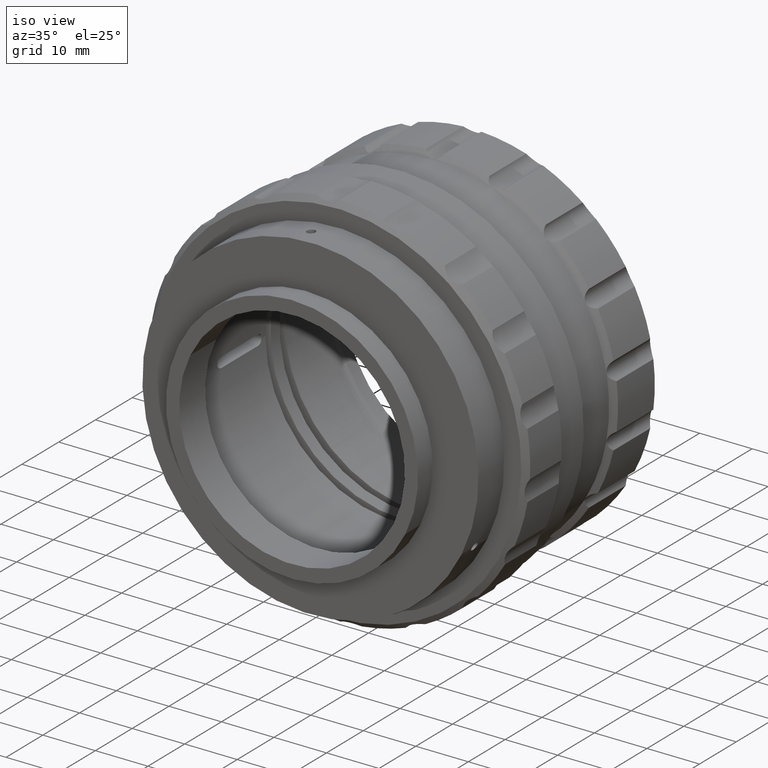
[diagram: clean part render]
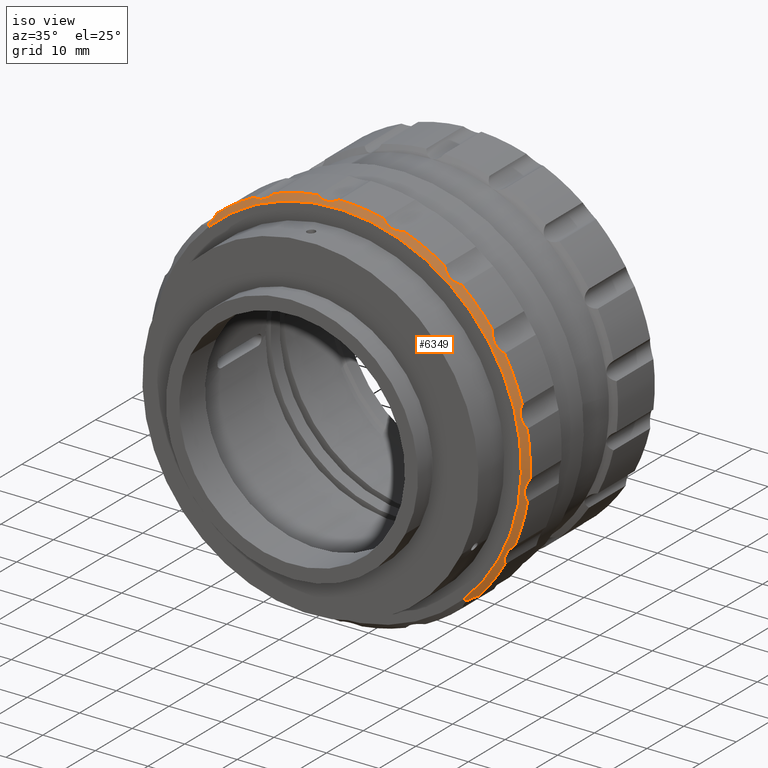
[diagram: same view with one face highlighted and labeled with its STEP entity id]
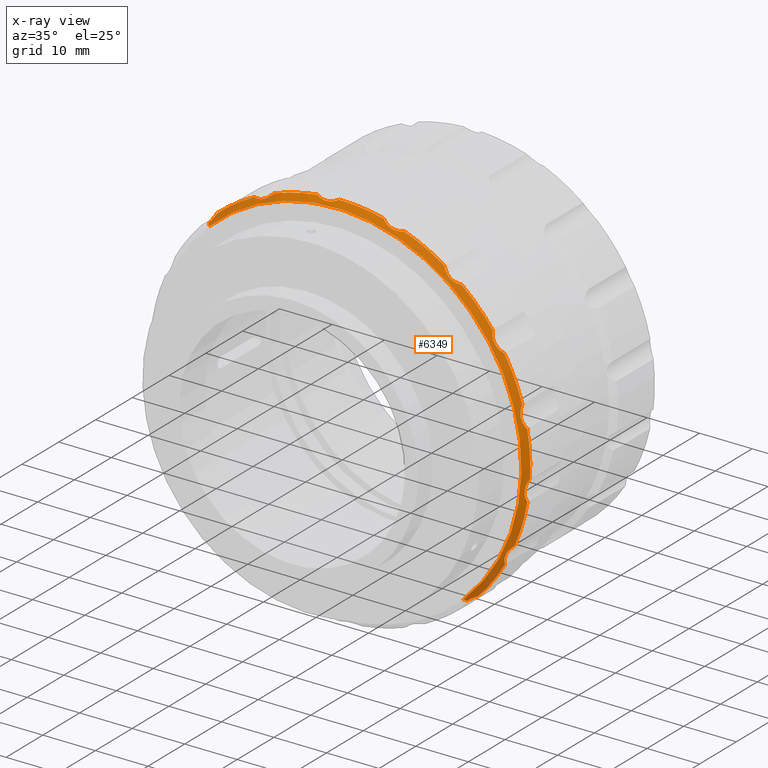
[diagram: x-ray of the same camera — body ghosted, the highlighted face saturated]
A machine part, iso view. The second image highlights one B-rep face of the part: STEP entity #6349.
The next image is the same camera in x-ray: the body ghosted, the highlighted face saturated — about 0% of this face is hidden behind the body in this view.
In plain terms, the highlighted conical surface has half-angle 45 deg.
Its self-contained STEP definition (entity closure, byte-faithful):
#31 = CARTESIAN_POINT ( 'NONE',  ( 1.924931696468226816, -22.12597522935089245, 80.84931709369671182 ) ) ;
#59 = AXIS2_PLACEMENT_3D ( 'NONE', #5724, #7388, #8987 ) ;
#83 = CARTESIAN_POINT ( 'NONE',  ( 5.870992352621482446, -22.04875568700542487, 81.15316655217093000 ) ) ;
#101 = ORIENTED_EDGE ( 'NONE', *, *, #1528, .T. ) ;
#134 = CARTESIAN_POINT ( 'NONE',  ( 2.592953144925168374, -22.37300402163701918, 80.67023619500793075 ) ) ;
#189 = EDGE_CURVE ( 'NONE', #5180, #6953, #3983, .T. ) ;
#202 = CARTESIAN_POINT ( 'NONE',  ( -6.603957015242775341, -22.10558987426886191, 78.84163259731209905 ) ) ;
#242 = CARTESIAN_POINT ( 'NONE',  ( 35.91739132470262064, -22.54857976888866133, 64.43184879938198151 ) ) ;
#265 = CIRCLE ( 'NONE', #7614, 36.25000000000000711 ) ;
#289 = CARTESIAN_POINT ( 'NONE',  ( 35.20290547297081218, -22.31936865482181886, 65.88136629029348512 ) ) ;
#298 = VERTEX_POINT ( 'NONE', #5541 ) ;
#319 = CARTESIAN_POINT ( 'NONE',  ( 18.27524817734909490, -22.04875568700542132, 79.00147688315576033 ) ) ;
#343 = CARTESIAN_POINT ( 'NONE',  ( 35.38456866820897773, -22.45942525178016780, 65.38184131922146491 ) ) ;
#360 = FACE_OUTER_BOUND ( 'NONE', #7399, .T. ) ;
#397 = ORIENTED_EDGE ( 'NONE', *, *, #9250, .F. ) ;
#401 = CARTESIAN_POINT ( 'NONE',  ( 30.53899048135792782, -22.54875568700595068, 18.93196092296004451 ) ) ;
#418 = CARTESIAN_POINT ( 'NONE',  ( 14.59678653120992031, -22.19589872075868087, 79.96111868030246228 ) ) ;
#504 = CARTESIAN_POINT ( 'NONE',  ( 26.99663305742282660, -22.53743217542645638, 73.83178354251528219 ) ) ;
#525 = AXIS2_PLACEMENT_3D ( 'NONE', #5852, #9007, #3399 ) ;
#623 = ORIENTED_EDGE ( 'NONE', *, *, #4580, .T. ) ;
#676 = CARTESIAN_POINT ( 'NONE',  ( 5.971701014312827738, -22.04875568700542132, 44.90330644533106863 ) ) ;
#686 = CARTESIAN_POINT ( 'NONE',  ( -18.33813755582300686, -22.53736744146983639, 71.13193104234834152 ) ) ;
#697 = CARTESIAN_POINT ( 'NONE',  ( -9.042121922773258547, -22.47647707030724717, 77.42893686249644247 ) ) ;
#727 = VERTEX_POINT ( 'NONE', #9689 ) ;
#744 = CARTESIAN_POINT ( 'NONE',  ( 40.61496717566637926, -22.31936865482183308, 54.61857374151529854 ) ) ;
#800 = ORIENTED_EDGE ( 'NONE', *, *, #8002, .T. ) ;
#831 = VERTEX_POINT ( 'NONE', #9794 ) ;
#847 = CARTESIAN_POINT ( 'NONE',  ( -17.40640722589645861, -22.04875568700542132, 72.60757606409306675 ) ) ;
#859 = CARTESIAN_POINT ( 'NONE',  ( -10.14066871754699406, -22.11886439949005378, 77.29766075828584349 ) ) ;
#884 = CARTESIAN_POINT ( 'NONE',  ( 3.668268646777906650, -22.54892761526755507, 80.57931607295681431 ) ) ;
#913 = ORIENTED_EDGE ( 'NONE', *, *, #9517, .T. ) ;
#934 = CARTESIAN_POINT ( 'NONE',  ( 4.744329775688706619, -22.45848575386843393, 80.72297056496238099 ) ) ;
#945 = DIRECTION ( 'NONE',  ( 0.6871969081691013947, 0.000000000000000000, -0.7264712034229763304 ) ) ;
#976 = CARTESIAN_POINT ( 'NONE',  ( 38.41306627433549181, -22.45942525178017135, 29.67028329585249935 ) ) ;
#1033 = CARTESIAN_POINT ( 'NONE',  ( 38.99917592472822747, -22.19589872075868797, 30.32153015030515775 ) ) ;
#1085 = CARTESIAN_POINT ( 'NONE',  ( 38.11163067731299492, -22.53743217542644928, 29.22116769332701125 ) ) ;
#1123 = CARTESIAN_POINT ( 'NONE',  ( 14.33681415579647478, -22.04875568700542132, 80.17492934717920150 ) ) ;
#1127 = B_SPLINE_CURVE_WITH_KNOTS ( 'NONE', 3,
 ( #8926, #10529, #8767, #1390, #3098, #1443, #7218, #1498, #7965, #7165, #3898, #4753, #744, #10423, #8872, #7858 ),
 .UNSPECIFIED., .F., .F.,
 ( 4, 2, 2, 2, 2, 2, 2, 4 ),
 ( 4.716633616438002482E-07, 0.001092205581411866524, 0.001638072540436992649, 0.002183939499462118992, 0.002729806458487245551, 0.003275673417512371243, 0.003821540376537497802, 0.004367407335562623061 ),
 .UNSPECIFIED. ) ;
#1150 = CARTESIAN_POINT ( 'NONE',  ( 35.25739685821262270, -22.37300402163701563, 65.71285280804171691 ) ) ;
#1158 = CARTESIAN_POINT ( 'NONE',  ( 32.02071542237458601, -22.19563124079600769, 19.90509944612694326 ) ) ;
#1161 = CARTESIAN_POINT ( 'NONE',  ( 42.07432510816483529, -22.12597522935087468, 42.64663700071146479 ) ) ;
#1176 = CARTESIAN_POINT ( 'NONE',  ( 15.33991635530341746, -22.45942525178017490, 79.49700118196744825 ) ) ;
#1201 = CARTESIAN_POINT ( 'NONE',  ( 36.76230032785321811, -22.32758617608958218, 63.50393400404438893 ) ) ;
#1227 = CARTESIAN_POINT ( 'NONE',  ( 14.46324146225145491, -22.12597522935087468, 80.06558402038706390 ) ) ;
#1257 = CARTESIAN_POINT ( 'NONE',  ( 31.70819682208358969, -22.31892789301096514, 19.75958552638040899 ) ) ;
#1305 = CARTESIAN_POINT ( 'NONE',  ( 27.58341695139070993, -22.53706554084979530, 73.39653715876045226 ) ) ;
#1367 = CARTESIAN_POINT ( 'NONE',  ( 41.78196414355279842, -22.37300402163700852, 42.01986137080488248 ) ) ;
#1390 = CARTESIAN_POINT ( 'NONE',  ( 41.03405317071106850, -22.45848575386845525, 52.33205055596768318 ) ) ;
#1414 = VERTEX_POINT ( 'NONE', #2334 ) ;
#1429 = DIRECTION ( 'NONE',  ( 0.000000000000000000, -1.000000000000000000, -0.000000000000000000 ) ) ;
#1443 = CARTESIAN_POINT ( 'NONE',  ( 40.84233157670956160, -22.53706554084978819, 52.83864427144183651 ) ) ;
#1447 = CARTESIAN_POINT ( 'NONE',  ( -9.675455244936811638, -22.29778710484628945, 77.32640556182604996 ) ) ;
#1498 = CARTESIAN_POINT ( 'NONE',  ( 40.70572505913541050, -22.54892761526757283, 53.36681855768372174 ) ) ;
#1504 = CARTESIAN_POINT ( 'NONE',  ( -7.810455679396900663, -22.53641137941016837, 77.90483394436964204 ) ) ;
#1528 = EDGE_CURVE ( 'NONE', #6650, #1974, #8671, .T. ) ;
#1558 = CARTESIAN_POINT ( 'NONE',  ( 5.971701014312827738, -22.04875568700542132, 44.90330644533106863 ) ) ;
#1594 = ORIENTED_EDGE ( 'NONE', *, *, #6377, .T. ) ;
#1641 = CARTESIAN_POINT ( 'NONE',  ( 4.567467246147938198, -22.49220561018445963, 80.68275775543712314 ) ) ;
#1683 = VECTOR ( 'NONE', #8647, 1000.000000000000114 ) ;
#1704 = ORIENTED_EDGE ( 'NONE', *, *, #5005, .T. ) ;
#1706 = CIRCLE ( 'NONE', #4424, 36.25000000000000711 ) ;
#1731 = AXIS2_PLACEMENT_3D ( 'NONE', #9328, #10191, #2021 ) ;
#1738 = CARTESIAN_POINT ( 'NONE',  ( -6.781722144397607899, -22.20668236016895492, 78.66701410258649219 ) ) ;
#1740 = CARTESIAN_POINT ( 'NONE',  ( 37.78489061799253079, -22.53706554084978464, 28.56771862382961302 ) ) ;
#1752 = CARTESIAN_POINT ( 'NONE',  ( 3.121106620889339212, -22.49260997893739500, 80.59625361072325234 ) ) ;
#1769 = ORIENTED_EDGE ( 'NONE', *, *, #10300, .T. ) ;
#1868 = CARTESIAN_POINT ( 'NONE',  ( -6.781722144397607899, -22.20668236016895492, 78.66701410258649219 ) ) ;
#1906 = CARTESIAN_POINT ( 'NONE',  ( 30.88258893544276162, -22.04875568700542132, 18.56872532124817354 ) ) ;
#1953 = DIRECTION ( 'NONE',  ( 0.4859215937768027183, 0.7071067811865446862, -0.5136927142771403609 ) ) ;
#1967 = CARTESIAN_POINT ( 'NONE',  ( 30.81246215995802373, -22.53712639467226353, 19.17661075035524476 ) ) ;
#1974 = VERTEX_POINT ( 'NONE', #2140 ) ;
#2004 = VERTEX_POINT ( 'NONE', #9214 ) ;
#2014 = CARTESIAN_POINT ( 'NONE',  ( 30.67123730623388056, -22.54875568700542487, 19.05705825474865378 ) ) ;
#2021 = DIRECTION ( 'NONE',  ( -0.6871969081691015058, 0.000000000000000000, 0.7264712034229763304 ) ) ;
#2040 = CARTESIAN_POINT ( 'NONE',  ( 5.971701014312827738, -22.04875568700542132, 44.90330644533106863 ) ) ;
#2069 = EDGE_CURVE ( 'NONE', #10145, #7006, #2865, .T. ) ;
#2116 = CARTESIAN_POINT ( 'NONE',  ( 41.46031472852682498, -22.45848575386843748, 39.89201175793666465 ) ) ;
#2140 = CARTESIAN_POINT ( 'NONE',  ( 5.870992352621482446, -22.04875568700542487, 81.15316655217093000 ) ) ;
#2163 = CARTESIAN_POINT ( 'NONE',  ( 41.50569872513829495, -22.54892761526755507, 40.97667044115350876 ) ) ;
#2230 = B_SPLINE_CURVE_WITH_KNOTS ( 'NONE', 3,
 ( #401, #2014, #1967, #7682, #9274, #5267, #1257, #1158, #9377, #8390 ),
 .UNSPECIFIED., .F., .F.,
 ( 4, 2, 2, 2, 4 ),
 ( 0.002188113334936255591, 0.002732936835092834773, 0.003277760335249413522, 0.003822583835406001378, 0.004367407335562589234 ),
 .UNSPECIFIED. ) ;
#2246 = VERTEX_POINT ( 'NONE', #4380 ) ;
#2248 = CARTESIAN_POINT ( 'NONE',  ( -7.263190067994687915, -22.41037424415680235, 78.26251602241606520 ) ) ;
#2312 = CARTESIAN_POINT ( 'NONE',  ( 5.971701014312827738, -22.04875568700542132, 44.90330644533106863 ) ) ;
#2334 = CARTESIAN_POINT ( 'NONE',  ( 18.27524817734909490, -22.04875568700542132, 79.00147688315576033 ) ) ;
#2345 = DIRECTION ( 'NONE',  ( 0.6871969081691013947, 0.000000000000000000, -0.7264712034229763304 ) ) ;
#2424 = DIRECTION ( 'NONE',  ( 0.6871969081691013947, 0.000000000000000000, -0.7264712034229763304 ) ) ;
#2444 = EDGE_CURVE ( 'NONE', #831, #7290, #3046, .T. ) ;
#2514 = CARTESIAN_POINT ( 'NONE',  ( -10.29241272243606353, -22.04875568700542132, 77.29992825005163581 ) ) ;
#2584 = LINE ( 'NONE', #10148, #1683 ) ;
#2589 = CARTESIAN_POINT ( 'NONE',  ( 39.25488205637943651, -22.04875568700542132, 30.54042512851242819 ) ) ;
#2594 = ORIENTED_EDGE ( 'NONE', *, *, #6762, .F. ) ;
#2599 = AXIS2_PLACEMENT_3D ( 'NONE', #2040, #10162, #9959 ) ;
#2659 = CARTESIAN_POINT ( 'NONE',  ( 5.971701014312827738, -22.04875568700542132, 44.90330644533106863 ) ) ;
#2683 = B_SPLINE_CURVE_WITH_KNOTS ( 'NONE', 3,
 ( #3606, #8478, #1201, #7770, #7677, #5311, #242, #8531, #4409, #9221, #343, #1150, #289, #10180, #6013, #2804 ),
 .UNSPECIFIED., .F., .F.,
 ( 4, 2, 2, 2, 2, 2, 2, 4 ),
 ( 4.716633616578037145E-07, 0.001092205581411913144, 0.001638072540437026693, 0.002183939499462140242, 0.002729806458487254225, 0.003275673417512367340, 0.003821540376537481323, 0.004367407335562594438 ),
 .UNSPECIFIED. ) ;
#2700 = VERTEX_POINT ( 'NONE', #6120 ) ;
#2736 = EDGE_CURVE ( 'NONE', #10218, #4343, #10192, .T. ) ;
#2778 = ORIENTED_EDGE ( 'NONE', *, *, #9826, .T. ) ;
#2804 = CARTESIAN_POINT ( 'NONE',  ( 35.05191162725192555, -22.04875568700542132, 66.54594608810812417 ) ) ;
#2824 = CARTESIAN_POINT ( 'NONE',  ( 16.53481215048761044, -22.53706554084978109, 79.06982727140409395 ) ) ;
#2865 = B_SPLINE_CURVE_WITH_KNOTS ( 'NONE', 3,
 ( #9560, #3849, #7113, #2248, #4012, #1504, #10427, #4921, #697, #7273, #1447, #3103, #859, #2514 ),
 .UNSPECIFIED., .F., .F.,
 ( 4, 2, 2, 2, 2, 2, 4 ),
 ( 0.0004026047974756960307, 0.0008982051147365443860, 0.001393805431997392850, 0.002385006066519113413, 0.003376206701040833542, 0.003871807018301693173, 0.004367407335562551937 ),
 .UNSPECIFIED. ) ;
#3017 = CARTESIAN_POINT ( 'NONE',  ( 28.86921591564080458, -22.20305237304452461, 72.80834822387120653 ) ) ;
#3022 = ORIENTED_EDGE ( 'NONE', *, *, #8915, .T. ) ;
#3026 = ORIENTED_EDGE ( 'NONE', *, *, #9415, .T. ) ;
#3046 = B_SPLINE_CURVE_WITH_KNOTS ( 'NONE', 3,
 ( #847, #6286, #3888, #9771, #5654, #686, #4907, #8179 ),
 .UNSPECIFIED., .F., .F.,
 ( 4, 2, 2, 4 ),
 ( 4.716633616397883825E-07, 0.001094292499148941545, 0.001641202917042592279, 0.002188113334936243014 ),
 .UNSPECIFIED. ) ;
#3098 = CARTESIAN_POINT ( 'NONE',  ( 40.96373942816786240, -22.49220561018445252, 52.49924326518386408 ) ) ;
#3103 = CARTESIAN_POINT ( 'NONE',  ( -9.987014318904483545, -22.18295413784821690, 77.30225153490557943 ) ) ;
#3124 = CARTESIAN_POINT ( 'NONE',  ( 27.13926640075788654, -22.54892761526758349, 73.71333315883529735 ) ) ;
#3214 = AXIS2_PLACEMENT_3D ( 'NONE', #4929, #8199, #7830 ) ;
#3230 = EDGE_CURVE ( 'NONE', #4343, #8843, #7832, .T. ) ;
#3291 = CARTESIAN_POINT ( 'NONE',  ( 3.482866727720481670, -22.53743217542644217, 80.57837138533628263 ) ) ;
#3399 = DIRECTION ( 'NONE',  ( 0.6871969081691013947, 0.000000000000000000, -0.7264712034229763304 ) ) ;
#3606 = CARTESIAN_POINT ( 'NONE',  ( 37.31464641962261908, -22.04875568700542132, 63.11545275815674927 ) ) ;
#3615 = CARTESIAN_POINT ( 'NONE',  ( 41.68833216871462355, -22.04875568700542487, 38.70776296792612925 ) ) ;
#3678 = CARTESIAN_POINT ( 'NONE',  ( 15.83455262477616010, -22.53743217542644217, 79.27813317492618239 ) ) ;
#3687 = ORIENTED_EDGE ( 'NONE', *, *, #2069, .T. ) ;
#3768 = CARTESIAN_POINT ( 'NONE',  ( 26.37396926388953133, -22.37300402163703339, 74.47418149419506506 ) ) ;
#3849 = CARTESIAN_POINT ( 'NONE',  ( -6.893839816509684582, -22.26627918670591910, 78.56095770659516120 ) ) ;
#3888 = CARTESIAN_POINT ( 'NONE',  ( -17.69368115807071007, -22.32806444983027916, 71.99500549809242500 ) ) ;
#3898 = CARTESIAN_POINT ( 'NONE',  ( 40.61482713749926177, -22.45942525178017846, 54.08704134022823240 ) ) ;
#3983 = CIRCLE ( 'NONE', #59, 36.25000000000000711 ) ;
#4012 = CARTESIAN_POINT ( 'NONE',  ( -7.396794232302396743, -22.44874697666554653, 78.16788681062148214 ) ) ;
#4032 = ORIENTED_EDGE ( 'NONE', *, *, #6635, .T. ) ;
#4152 = CARTESIAN_POINT ( 'NONE',  ( 2.419770495794069110, -22.31936865482182242, 80.70730201222703215 ) ) ;
#4191 = CARTESIAN_POINT ( 'NONE',  ( 38.01974784126232976, -22.54892761526755862, 29.06013257770261404 ) ) ;
#4214 = ORIENTED_EDGE ( 'NONE', *, *, #4462, .T. ) ;
#4235 = CARTESIAN_POINT ( 'NONE',  ( -6.521116521204574745, -22.04875568700542487, 78.93258810134415171 ) ) ;
#4245 = CARTESIAN_POINT ( 'NONE',  ( 38.75483599148947178, -22.31936865482182597, 30.07737072339741857 ) ) ;
#4251 = AXIS2_PLACEMENT_3D ( 'NONE', #7690, #7590, #4520 ) ;
#4343 = VERTEX_POINT ( 'NONE', #4501 ) ;
#4344 = CARTESIAN_POINT ( 'NONE',  ( 37.42891424166565884, -22.20305237304454238, 27.19931589835367802 ) ) ;
#4351 = LINE ( 'NONE', #1906, #5756 ) ;
#4380 = CARTESIAN_POINT ( 'NONE',  ( 40.70037905076015505, -22.04875568700542132, 55.29471741019918340 ) ) ;
#4409 = CARTESIAN_POINT ( 'NONE',  ( 35.62279639072077231, -22.53743217542644928, 64.89623263333231762 ) ) ;
#4424 = AXIS2_PLACEMENT_3D ( 'NONE', #1558, #6401, #2345 ) ;
#4462 = EDGE_CURVE ( 'NONE', #2246, #2700, #265, .T. ) ;
#4469 = CARTESIAN_POINT ( 'NONE',  ( 41.46413573237146011, -22.54857976888866133, 40.61431910283647539 ) ) ;
#4501 = CARTESIAN_POINT ( 'NONE',  ( 42.16005536237214812, -22.04875568700542132, 42.79013120903463374 ) ) ;
#4512 = CARTESIAN_POINT ( 'NONE',  ( 41.53696309482568694, -22.53743217542644572, 41.15941973174837898 ) ) ;
#4520 = DIRECTION ( 'NONE',  ( 0.6871969081691013947, 0.000000000000000000, -0.7264712034229763304 ) ) ;
#4565 = CARTESIAN_POINT ( 'NONE',  ( 29.19551463319734808, -22.04875568700542132, 72.73704462393931180 ) ) ;
#4580 = EDGE_CURVE ( 'NONE', #4689, #7260, #4844, .T. ) ;
#4587 = CARTESIAN_POINT ( 'NONE',  ( 29.19551463319734808, -22.04875568700542132, 72.73704462393931180 ) ) ;
#4608 = AXIS2_PLACEMENT_3D ( 'NONE', #676, #1429, #8857 ) ;
#4620 = CARTESIAN_POINT ( 'NONE',  ( 26.60668427216386434, -22.45942525178017846, 74.20662776143724670 ) ) ;
#4689 = VERTEX_POINT ( 'NONE', #7661 ) ;
#4753 = CARTESIAN_POINT ( 'NONE',  ( 40.60853732292243734, -22.37300402163702273, 54.44158571434994798 ) ) ;
#4813 = ORIENTED_EDGE ( 'NONE', *, *, #9793, .T. ) ;
#4844 = B_SPLINE_CURVE_WITH_KNOTS ( 'NONE', 3,
 ( #8372, #4344, #5998, #7397, #8314, #1740, #6585, #4191, #1085, #7608, #976, #7505, #4245, #1033, #6743, #2589 ),
 .UNSPECIFIED., .F., .F.,
 ( 4, 2, 2, 2, 2, 2, 2, 4 ),
 ( 4.716633616560211866E-07, 0.001092205581411896881, 0.001638072540437012165, 0.002183939499462127665, 0.002729806458487242949, 0.003275673417512358666, 0.003821540376537473950, 0.004367407335562589234 ),
 .UNSPECIFIED. ) ;
#4907 = CARTESIAN_POINT ( 'NONE',  ( -18.46283506335601743, -22.54875568700542843, 71.00022847823539962 ) ) ;
#4921 = CARTESIAN_POINT ( 'NONE',  ( -8.725714335559382917, -22.52922751698231352, 77.51551586866679600 ) ) ;
#4929 = CARTESIAN_POINT ( 'NONE',  ( 5.971701014312827738, -23.04875568700542132, 44.90330644533106863 ) ) ;
#4960 = VERTEX_POINT ( 'NONE', #4587 ) ;
#5000 = CARTESIAN_POINT ( 'NONE',  ( 1.768730585185208870, -22.04875568700542132, 80.90882740492669711 ) ) ;
#5005 = EDGE_CURVE ( 'NONE', #1414, #6650, #5597, .T. ) ;
#5072 = CARTESIAN_POINT ( 'NONE',  ( 39.25488205637943651, -22.04875568700542132, 30.54042512851242819 ) ) ;
#5180 = VERTEX_POINT ( 'NONE', #9081 ) ;
#5233 = CARTESIAN_POINT ( 'NONE',  ( 14.87966581193785487, -22.31936865482182242, 79.76288865922118987 ) ) ;
#5267 = CARTESIAN_POINT ( 'NONE',  ( 31.55199217235799836, -22.37251383166399421, 19.67687183539194962 ) ) ;
#5311 = CARTESIAN_POINT ( 'NONE',  ( 36.02532985532459264, -22.53706554084978464, 64.28654290677803829 ) ) ;
#5314 = CIRCLE ( 'NONE', #2599, 36.25000000000000711 ) ;
#5414 = CARTESIAN_POINT ( 'NONE',  ( 28.54361067524386186, -22.32758617608957863, 72.91318409454130745 ) ) ;
#5457 = CONICAL_SURFACE ( 'NONE', #1731, 36.25000000000000000, 0.7853981633974521648 ) ;
#5541 = CARTESIAN_POINT ( 'NONE',  ( 35.05191162725192555, -22.04875568700542132, 66.54594608810812417 ) ) ;
#5587 = AXIS2_PLACEMENT_3D ( 'NONE', #2659, #6767, #945 ) ;
#5597 = B_SPLINE_CURVE_WITH_KNOTS ( 'NONE', 3,
 ( #319, #9246, #6036, #10259, #6186, #2824, #6079, #8553, #3678, #9393, #1176, #6842, #5233, #418, #1227, #1123 ),
 .UNSPECIFIED., .F., .F.,
 ( 4, 2, 2, 2, 2, 2, 2, 4 ),
 ( 4.716633616522714776E-07, 0.001092205581411877366, 0.001638072540436990047, 0.002183939499462102512, 0.002729806458487224734, 0.003275673417512347391, 0.003821540376537469613, 0.004367407335562591836 ),
 .UNSPECIFIED. ) ;
#5624 = DIRECTION ( 'NONE',  ( 0.6871969081691013947, 0.000000000000000000, -0.7264712034229763304 ) ) ;
#5634 = CARTESIAN_POINT ( 'NONE',  ( 2.943203408186218617, -22.45942525178017846, 80.61486446869994893 ) ) ;
#5654 = CARTESIAN_POINT ( 'NONE',  ( -18.10428726705366387, -22.49267332286863308, 71.40716338827887455 ) ) ;
#5690 = CARTESIAN_POINT ( 'NONE',  ( 5.575199962678208720, -22.20305237304453883, 80.99804750597120062 ) ) ;
#5699 = CARTESIAN_POINT ( 'NONE',  ( -18.59558845273226879, -22.54875568700594712, 70.87465196770209275 ) ) ;
#5704 = VERTEX_POINT ( 'NONE', #6471 ) ;
#5724 = CARTESIAN_POINT ( 'NONE',  ( 5.971701014312827738, -22.04875568700542132, 44.90330644533106863 ) ) ;
#5756 = VECTOR ( 'NONE', #1953, 1000.000000000000114 ) ;
#5852 = CARTESIAN_POINT ( 'NONE',  ( 5.971701014312827738, -22.04875568700542132, 44.90330644533106863 ) ) ;
#5998 = CARTESIAN_POINT ( 'NONE',  ( 37.47561666326165408, -22.32758617608958573, 27.53817902141398832 ) ) ;
#6013 = CARTESIAN_POINT ( 'NONE',  ( 35.07847474158111822, -22.12597522935087824, 66.38091680202268208 ) ) ;
#6036 = CARTESIAN_POINT ( 'NONE',  ( 17.60241559161848457, -22.32758617608958929, 78.94402955877579586 ) ) ;
#6079 = CARTESIAN_POINT ( 'NONE',  ( 16.35872561152597271, -22.54857976888866844, 79.11175649289418743 ) ) ;
#6120 = CARTESIAN_POINT ( 'NONE',  ( 37.31464641962261908, -22.04875568700542132, 63.11545275815674927 ) ) ;
#6147 = CIRCLE ( 'NONE', #4608, 36.25000000000000711 ) ;
#6186 = CARTESIAN_POINT ( 'NONE',  ( 16.88944596970616985, -22.49220561018447029, 79.00526905185692783 ) ) ;
#6286 = CARTESIAN_POINT ( 'NONE',  ( -17.53353128356705071, -22.20334732082030982, 72.29802570149698226 ) ) ;
#6310 = CARTESIAN_POINT ( 'NONE',  ( 30.19539202727365179, -23.04875568700542132, 19.29519652467115876 ) ) ;
#6349 = ADVANCED_FACE ( 'NONE', ( #360 ), #5457, .T. ) ;
#6376 = CARTESIAN_POINT ( 'NONE',  ( 26.73100321075505903, -22.49260997893740210, 74.07801703625351308 ) ) ;
#6377 = EDGE_CURVE ( 'NONE', #298, #4960, #6147, .T. ) ;
#6401 = DIRECTION ( 'NONE',  ( 0.000000000000000000, -1.000000000000000000, -0.000000000000000000 ) ) ;
#6471 = CARTESIAN_POINT ( 'NONE',  ( 25.89594162562330482, -22.04875568700542132, 75.18675301375530751 ) ) ;
#6585 = CARTESIAN_POINT ( 'NONE',  ( 37.85675994699612090, -22.54857976888866844, 28.73384907969737156 ) ) ;
#6635 = EDGE_CURVE ( 'NONE', #2700, #298, #2683, .T. ) ;
#6650 = VERTEX_POINT ( 'NONE', #8431 ) ;
#6704 = B_SPLINE_CURVE_WITH_KNOTS ( 'NONE', 3,
 ( #9173, #202, #6719, #1868 ),
 .UNSPECIFIED., .F., .F.,
 ( 4, 4 ),
 ( 4.716633616468192854E-07, 0.0004026047974756960307 ),
 .UNSPECIFIED. ) ;
#6719 = CARTESIAN_POINT ( 'NONE',  ( -6.690749178267987318, -22.15832512994960979, 78.75306891213253380 ) ) ;
#6743 = CARTESIAN_POINT ( 'NONE',  ( 39.12524405942561145, -22.12597522935088534, 30.43490615365695717 ) ) ;
#6762 = EDGE_CURVE ( 'NONE', #10074, #727, #7658, .T. ) ;
#6767 = DIRECTION ( 'NONE',  ( 0.000000000000000000, -1.000000000000000000, -0.000000000000000000 ) ) ;
#6825 = CARTESIAN_POINT ( 'NONE',  ( 41.84853969914703242, -22.31936865482181531, 42.18397657474255880 ) ) ;
#6833 = ORIENTED_EDGE ( 'NONE', *, *, #7959, .T. ) ;
#6842 = CARTESIAN_POINT ( 'NONE',  ( 15.02972701325674798, -22.37300402163701918, 79.66882622981964346 ) ) ;
#6885 = ORIENTED_EDGE ( 'NONE', *, *, #189, .T. ) ;
#6923 = ORIENTED_EDGE ( 'NONE', *, *, #2444, .T. ) ;
#6953 = VERTEX_POINT ( 'NONE', #4235 ) ;
#6982 = CARTESIAN_POINT ( 'NONE',  ( 41.51492144588836197, -22.32758617608957508, 39.36039809164245895 ) ) ;
#7006 = VERTEX_POINT ( 'NONE', #10263 ) ;
#7032 = CARTESIAN_POINT ( 'NONE',  ( 26.06710819347777885, -22.19589872075869152, 74.89692091874633206 ) ) ;
#7036 = CARTESIAN_POINT ( 'NONE',  ( 41.45142469788824258, -22.49220561018445608, 40.07317022933867889 ) ) ;
#7113 = CARTESIAN_POINT ( 'NONE',  ( -7.012296623528171402, -22.31923778947166426, 78.45870536205553947 ) ) ;
#7127 = ORIENTED_EDGE ( 'NONE', *, *, #3230, .T. ) ;
#7165 = CARTESIAN_POINT ( 'NONE',  ( 40.62739158896059166, -22.49260997893739145, 53.90860913549992972 ) ) ;
#7191 = CARTESIAN_POINT ( 'NONE',  ( 25.97734612822344857, -22.12597522935088534, 75.04076133157731476 ) ) ;
#7218 = CARTESIAN_POINT ( 'NONE',  ( 40.79060007820006462, -22.54857976888867910, 53.01210429819214909 ) ) ;
#7260 = VERTEX_POINT ( 'NONE', #5072 ) ;
#7273 = CARTESIAN_POINT ( 'NONE',  ( -9.516639871643196358, -22.34874153388778240, 77.34616053050281437 ) ) ;
#7290 = VERTEX_POINT ( 'NONE', #5699 ) ;
#7314 = ORIENTED_EDGE ( 'NONE', *, *, #8669, .T. ) ;
#7340 = ORIENTED_EDGE ( 'NONE', *, *, #2736, .T. ) ;
#7388 = DIRECTION ( 'NONE',  ( 0.000000000000000000, -1.000000000000000000, -0.000000000000000000 ) ) ;
#7397 = CARTESIAN_POINT ( 'NONE',  ( 37.60612571625147638, -22.45848575386845525, 28.05640905803810625 ) ) ;
#7399 = EDGE_LOOP ( 'NONE', ( #2594, #3022, #913, #1769, #623, #800, #7340, #7127, #6833, #4214, #4032, #1594, #7314, #4813, #1704, #101, #2778, #6885, #3026, #3687, #10448, #6923, #397 ) ) ;
#7407 = CARTESIAN_POINT ( 'NONE',  ( 2.086152262899136911, -22.19589872075870574, 80.79682688811695357 ) ) ;
#7486 = B_SPLINE_CURVE_WITH_KNOTS ( 'NONE', 3,
 ( #4565, #3017, #5414, #7833, #8845, #1305, #7940, #3124, #504, #6376, #4620, #3768, #10293, #7032, #7191, #10241 ),
 .UNSPECIFIED., .F., .F.,
 ( 4, 2, 2, 2, 2, 2, 2, 4 ),
 ( 4.716633616407151954E-07, 0.001092205581411867391, 0.001638072540436992216, 0.002183939499462116823, 0.002729806458487241648, 0.003275673417512366906, 0.003821540376537491731, 0.004367407335562616989 ),
 .UNSPECIFIED. ) ;
#7505 = CARTESIAN_POINT ( 'NONE',  ( 38.63614472760016127, -22.37300402163701918, 29.94592305836474466 ) ) ;
#7590 = DIRECTION ( 'NONE',  ( 0.000000000000000000, -1.000000000000000000, -0.000000000000000000 ) ) ;
#7608 = CARTESIAN_POINT ( 'NONE',  ( 38.30799719218986610, -22.49260997893739500, 29.52552002322508073 ) ) ;
#7614 = AXIS2_PLACEMENT_3D ( 'NONE', #2312, #8943, #2424 ) ;
#7658 = CIRCLE ( 'NONE', #3214, 35.24999999999999289 ) ;
#7661 = CARTESIAN_POINT ( 'NONE',  ( 37.41535508131381249, -22.04875568700542132, 26.86559265131680618 ) ) ;
#7677 = CARTESIAN_POINT ( 'NONE',  ( 36.25549789825067393, -22.49220561018447029, 64.00913421646676227 ) ) ;
#7682 = CARTESIAN_POINT ( 'NONE',  ( 31.10061964296261294, -22.49214250359403522, 19.39481467776921519 ) ) ;
#7690 = CARTESIAN_POINT ( 'NONE',  ( 5.971701014312827738, -22.04875568700542132, 44.90330644533106863 ) ) ;
#7770 = CARTESIAN_POINT ( 'NONE',  ( 36.37875447762750269, -22.45848575386844814, 63.87607317766948256 ) ) ;
#7779 = CARTESIAN_POINT ( 'NONE',  ( 41.61739263233168629, -22.49260997893739145, 41.51257867383515077 ) ) ;
#7799 = CIRCLE ( 'NONE', #4251, 36.25000000000000711 ) ;
#7830 = DIRECTION ( 'NONE',  ( 0.6871969081691013947, 0.000000000000000000, -0.7264712034229765525 ) ) ;
#7832 = CIRCLE ( 'NONE', #10059, 36.25000000000000711 ) ;
#7833 = CARTESIAN_POINT ( 'NONE',  ( 28.05591637655334480, -22.45848575386845170, 73.13170012323602975 ) ) ;
#7838 = CARTESIAN_POINT ( 'NONE',  ( 41.58693353885864497, -22.20305237304453172, 39.02599774651829989 ) ) ;
#7858 = CARTESIAN_POINT ( 'NONE',  ( 40.70037905076015505, -22.04875568700542132, 55.29471741019918340 ) ) ;
#7940 = CARTESIAN_POINT ( 'NONE',  ( 27.43229036845231406, -22.54857976888867910, 73.49616288208341075 ) ) ;
#7959 = EDGE_CURVE ( 'NONE', #8843, #2246, #1127, .T. ) ;
#7965 = CARTESIAN_POINT ( 'NONE',  ( 40.67260001806222647, -22.53743217542645993, 53.54923976171102851 ) ) ;
#8002 = EDGE_CURVE ( 'NONE', #7260, #10218, #1706, .T. ) ;
#8179 = CARTESIAN_POINT ( 'NONE',  ( -18.59558845273226879, -22.54875568700594712, 70.87465196770209275 ) ) ;
#8199 = DIRECTION ( 'NONE',  ( 0.000000000000000000, -1.000000000000000000, -0.000000000000000000 ) ) ;
#8217 = CARTESIAN_POINT ( 'NONE',  ( 4.212140251644768796, -22.53706554084976688, 80.62213072827941573 ) ) ;
#8224 = EDGE_CURVE ( 'NONE', #7006, #831, #7799, .T. ) ;
#8253 = B_SPLINE_CURVE_WITH_KNOTS ( 'NONE', 3,
 ( #83, #5690, #9918, #934, #1641, #8217, #10566, #884, #3291, #1752, #5634, #134, #4152, #7407, #31, #5000 ),
 .UNSPECIFIED., .F., .F.,
 ( 4, 2, 2, 2, 2, 2, 2, 4 ),
 ( 4.716633624877934589E-07, 0.001092205581412723911, 0.001638072540437835291, 0.002183939499462946889, 0.002729806458488056968, 0.003275673417513167915, 0.003821540376538277994, 0.004367407335563388074 ),
 .UNSPECIFIED. ) ;
#8314 = CARTESIAN_POINT ( 'NONE',  ( 37.65973166641543912, -22.49220561018446318, 28.22968290636063671 ) ) ;
#8372 = CARTESIAN_POINT ( 'NONE',  ( 37.41535508131381249, -22.04875568700542132, 26.86559265131680618 ) ) ;
#8390 = CARTESIAN_POINT ( 'NONE',  ( 32.33526590927619537, -22.04875568700542132, 20.02309450835080540 ) ) ;
#8431 = CARTESIAN_POINT ( 'NONE',  ( 14.33681415579647478, -22.04875568700542132, 80.17492934717920150 ) ) ;
#8478 = CARTESIAN_POINT ( 'NONE',  ( 37.03241319003118548, -22.20305237304453172, 63.29405695899385620 ) ) ;
#8531 = CARTESIAN_POINT ( 'NONE',  ( 35.71631547372754056, -22.54892761526755862, 64.73614220532846275 ) ) ;
#8539 = CARTESIAN_POINT ( 'NONE',  ( 41.99463668918953374, -22.19589872075868797, 42.49698056548959357 ) ) ;
#8553 = CARTESIAN_POINT ( 'NONE',  ( 16.00909654218936140, -22.54892761526756573, 79.21560969998328972 ) ) ;
#8636 = CARTESIAN_POINT ( 'NONE',  ( 41.45342061657260757, -22.53706554084977398, 40.43362678116322684 ) ) ;
#8647 = DIRECTION ( 'NONE',  ( -0.4859215937768026627, 0.7071067811865446862, 0.5136927142771403609 ) ) ;
#8669 = EDGE_CURVE ( 'NONE', #4960, #5704, #7486, .T. ) ;
#8671 = CIRCLE ( 'NONE', #5587, 36.25000000000000711 ) ;
#8736 = CARTESIAN_POINT ( 'NONE',  ( 5.971701014312827738, -22.04875568700542132, 44.90330644533106863 ) ) ;
#8767 = CARTESIAN_POINT ( 'NONE',  ( 41.26718928240089923, -22.32758617608959639, 51.85117371394064634 ) ) ;
#8843 = VERTEX_POINT ( 'NONE', #10505 ) ;
#8845 = CARTESIAN_POINT ( 'NONE',  ( 27.89458352288913545, -22.49220561018447029, 73.21458036656362367 ) ) ;
#8857 = DIRECTION ( 'NONE',  ( 0.6871969081691013947, 0.000000000000000000, -0.7264712034229763304 ) ) ;
#8872 = CARTESIAN_POINT ( 'NONE',  ( 40.66889687320053781, -22.12597522935088534, 55.13055548768104330 ) ) ;
#8915 = EDGE_CURVE ( 'NONE', #10074, #9742, #4351, .T. ) ;
#8926 = CARTESIAN_POINT ( 'NONE',  ( 41.65335641755872587, -22.04875568700541777, 51.29720726439394696 ) ) ;
#8943 = DIRECTION ( 'NONE',  ( 0.000000000000000000, -1.000000000000000000, -0.000000000000000000 ) ) ;
#8987 = DIRECTION ( 'NONE',  ( 0.6871969081691013947, 0.000000000000000000, -0.7264712034229763304 ) ) ;
#9007 = DIRECTION ( 'NONE',  ( 0.000000000000000000, -1.000000000000000000, -0.000000000000000000 ) ) ;
#9081 = CARTESIAN_POINT ( 'NONE',  ( 1.768730585185208870, -22.04875568700542132, 80.90882740492669711 ) ) ;
#9173 = CARTESIAN_POINT ( 'NONE',  ( -6.521116521204574745, -22.04875568700542487, 78.93258810134415171 ) ) ;
#9214 = CARTESIAN_POINT ( 'NONE',  ( 32.33526590927619537, -22.04875568700542132, 20.02309450835080540 ) ) ;
#9221 = CARTESIAN_POINT ( 'NONE',  ( 35.45740279876648771, -22.49260997893739145, 65.21846718861729642 ) ) ;
#9246 = CARTESIAN_POINT ( 'NONE',  ( 17.94424041282098159, -22.20305237304454238, 78.95687961570156688 ) ) ;
#9250 = EDGE_CURVE ( 'NONE', #727, #7290, #2584, .T. ) ;
#9274 = CARTESIAN_POINT ( 'NONE',  ( 31.24861681207922715, -22.45892336220828511, 19.49463560576111831 ) ) ;
#9328 = CARTESIAN_POINT ( 'NONE',  ( 5.971701014312827738, -22.04875568700542132, 44.90330644533106863 ) ) ;
#9377 = CARTESIAN_POINT ( 'NONE',  ( 32.17765827912690213, -22.12582761936102216, 19.96838269797958532 ) ) ;
#9393 = CARTESIAN_POINT ( 'NONE',  ( 15.50072540318203096, -22.49260997893739145, 79.41866621375343982 ) ) ;
#9415 = EDGE_CURVE ( 'NONE', #6953, #10145, #6704, .T. ) ;
#9517 = EDGE_CURVE ( 'NONE', #9742, #2004, #2230, .T. ) ;
#9560 = CARTESIAN_POINT ( 'NONE',  ( -6.781722144397607899, -22.20668236016895492, 78.66701410258649219 ) ) ;
#9570 = CIRCLE ( 'NONE', #525, 36.25000000000000711 ) ;
#9689 = CARTESIAN_POINT ( 'NONE',  ( -18.25198999864799276, -23.04875568700542132, 70.51141636599098206 ) ) ;
#9742 = VERTEX_POINT ( 'NONE', #10295 ) ;
#9771 = CARTESIAN_POINT ( 'NONE',  ( -17.99437235027826176, -22.45899666256446636, 71.55186391333636209 ) ) ;
#9793 = EDGE_CURVE ( 'NONE', #5704, #1414, #9570, .T. ) ;
#9794 = CARTESIAN_POINT ( 'NONE',  ( -17.40640722589645861, -22.04875568700542132, 72.60757606409306675 ) ) ;
#9826 = EDGE_CURVE ( 'NONE', #1974, #5180, #8253, .T. ) ;
#9848 = CARTESIAN_POINT ( 'NONE',  ( 41.68833216871462355, -22.04875568700542487, 38.70776296792612925 ) ) ;
#9918 = CARTESIAN_POINT ( 'NONE',  ( 5.258384678904256759, -22.32758617608956797, 80.86906142796136976 ) ) ;
#9959 = DIRECTION ( 'NONE',  ( 0.6871969081691013947, 0.000000000000000000, -0.7264712034229763304 ) ) ;
#10059 = AXIS2_PLACEMENT_3D ( 'NONE', #8736, #10335, #5624 ) ;
#10074 = VERTEX_POINT ( 'NONE', #6310 ) ;
#10088 = CARTESIAN_POINT ( 'NONE',  ( 42.16005536237214812, -22.04875568700542132, 42.79013120903463374 ) ) ;
#10145 = VERTEX_POINT ( 'NONE', #1738 ) ;
#10148 = CARTESIAN_POINT ( 'NONE',  ( -18.93918690681709904, -22.04875568700542132, 71.23788756941395661 ) ) ;
#10162 = DIRECTION ( 'NONE',  ( 0.000000000000000000, -1.000000000000000000, -0.000000000000000000 ) ) ;
#10180 = CARTESIAN_POINT ( 'NONE',  ( 35.11362717331465433, -22.19589872075867376, 66.21505059309112085 ) ) ;
#10191 = DIRECTION ( 'NONE',  ( 0.000000000000000000, 1.000000000000000000, 0.000000000000000000 ) ) ;
#10192 = B_SPLINE_CURVE_WITH_KNOTS ( 'NONE', 3,
 ( #3615, #7838, #6982, #2116, #7036, #8636, #4469, #2163, #4512, #7779, #10297, #1367, #6825, #8539, #1161, #10088 ),
 .UNSPECIFIED., .F., .F.,
 ( 4, 2, 2, 2, 2, 2, 2, 4 ),
 ( 4.716633616680605423E-07, 0.001092205581411889725, 0.001638072540437010430, 0.002183939499462132002, 0.002729806458487252490, 0.003275673417512373412, 0.003821540376537494767, 0.004367407335562615255 ),
 .UNSPECIFIED. ) ;
#10218 = VERTEX_POINT ( 'NONE', #9848 ) ;
#10241 = CARTESIAN_POINT ( 'NONE',  ( 25.89594162562330482, -22.04875568700542132, 75.18675301375530751 ) ) ;
#10259 = CARTESIAN_POINT ( 'NONE',  ( 17.06939597448653245, -22.45848575386845525, 78.98256618452640510 ) ) ;
#10263 = CARTESIAN_POINT ( 'NONE',  ( -10.29241272243606353, -22.04875568700542132, 77.29992825005163581 ) ) ;
#10293 = CARTESIAN_POINT ( 'NONE',  ( 26.26512910592936123, -22.31936865482182952, 74.61389521857957163 ) ) ;
#10295 = CARTESIAN_POINT ( 'NONE',  ( 30.53899048135792782, -22.54875568700595068, 18.93196092296004451 ) ) ;
#10297 = CARTESIAN_POINT ( 'NONE',  ( 41.66661331824435877, -22.45942525178016780, 41.68454739541850529 ) ) ;
#10300 = EDGE_CURVE ( 'NONE', #2004, #4689, #5314, .T. ) ;
#10335 = DIRECTION ( 'NONE',  ( 0.000000000000000000, -1.000000000000000000, -0.000000000000000000 ) ) ;
#10423 = CARTESIAN_POINT ( 'NONE',  ( 40.64519976935154943, -22.19589872075869863, 54.96266939537058960 ) ) ;
#10427 = CARTESIAN_POINT ( 'NONE',  ( -8.103373261589362997, -22.55934293257472945, 77.75614474115403141 ) ) ;
#10448 = ORIENTED_EDGE ( 'NONE', *, *, #8224, .T. ) ;
#10505 = CARTESIAN_POINT ( 'NONE',  ( 41.65335641755872587, -22.04875568700541777, 51.29720726439394696 ) ) ;
#10529 = CARTESIAN_POINT ( 'NONE',  ( 41.44923016873994470, -22.20305237304454238, 51.56156976359809363 ) ) ;
#10566 = CARTESIAN_POINT ( 'NONE',  ( 4.032332392019207568, -22.54857976888865423, 80.60130616501558620 ) ) ;